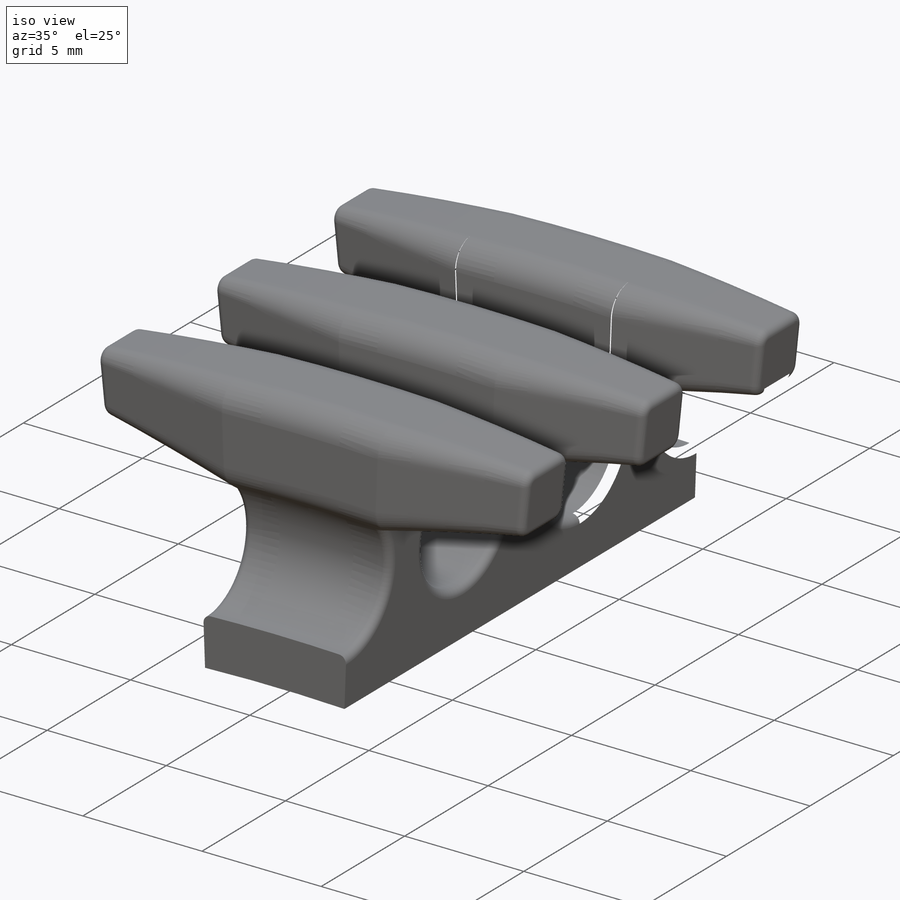
[diagram: iso view]
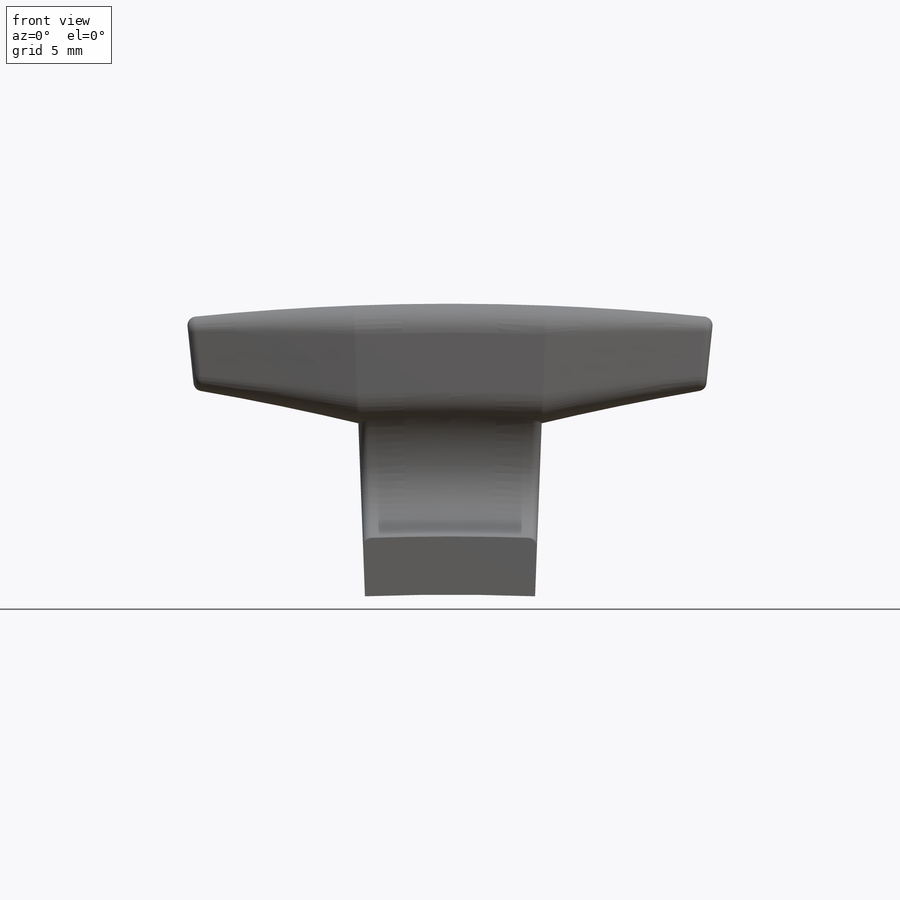
[diagram: front view]
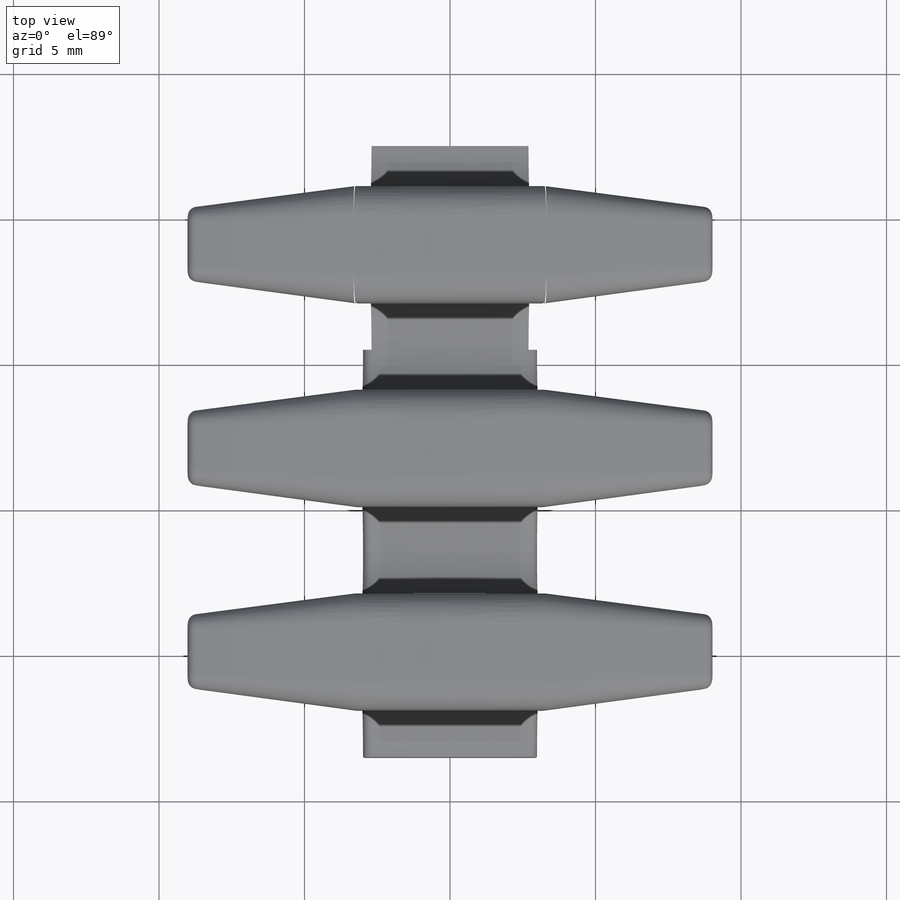
[diagram: top view]
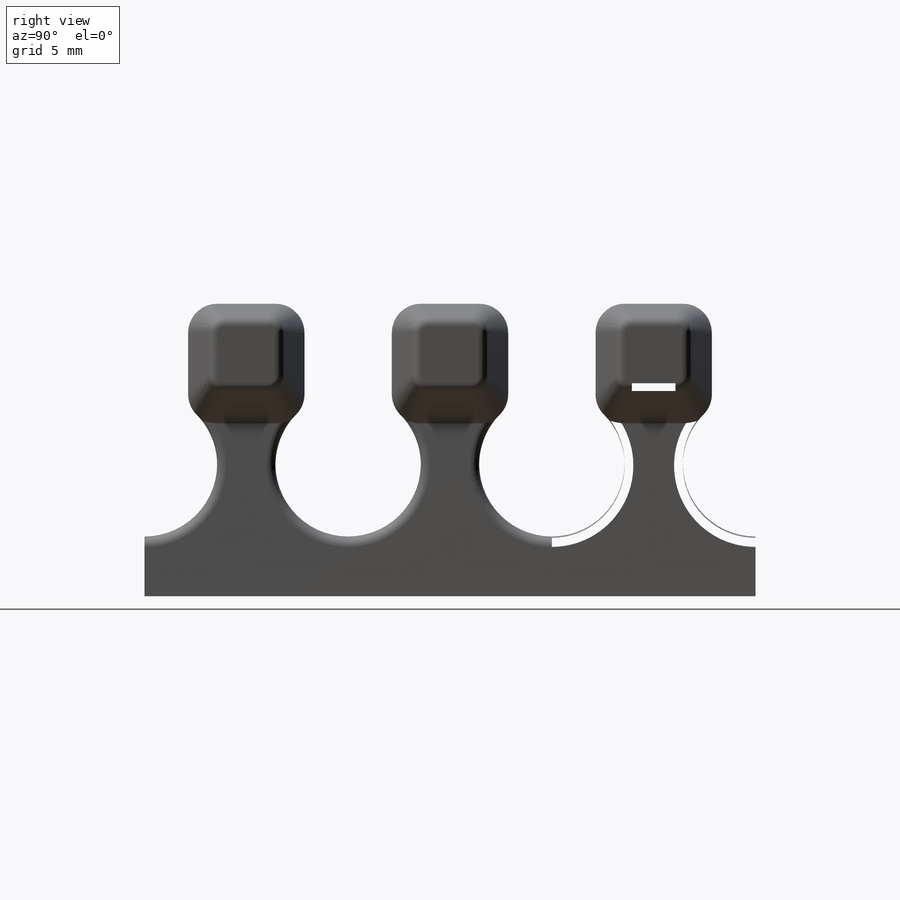
[diagram: right view]
SOLIDWORKS PART (.sldprt)
format: sldprt  version: not decoded by parser v0  size: 2,050,560 bytes
history: native  units: mm
features: sketch x5, fillet x2, pattern_linear x2, material x1, sweep x1, plane x1, mirror x1 (+11 scaffold rows collapsed)
feature tree (24):
  scaffold x11  (default folders/planes/origin — collapsed)
  material  "Material <not specified>"
  sketch  "Sketch1"  dims[D1=5.0mm D6=1.0mm D2=7.0mm D3=2.0mm D4=4.0mm D5=8.0mm]
  sketch  "Sketch2"  dims[D1=78.6mm D2=3.0mm]
  sweep  "Sweep1"
  sketch  "Sketch3"  dims[D1=0.0mm]
  sketch  "Sketch4"  dims[c1.D1=86.6mm c2.D1=6.0deg]
  plane  "tip"
  sketch  "Sketch5"  dims[D2=0.5mm D1=2.5mm]
  fillet  "Fillet1"  Radius=0.3mm
  mirror  "Mirror1"
  fillet  "Fillet2"  Radius=0.3mm
  pattern_linear  "LPattern1"  Count1=5 Count2=1 Spacing1=7mm Spacing2=10mm
  pattern_linear  "LPattern2"  Count1=4 Count2=1 Spacing1=7mm Spacing2=10mm
decode coverage: 9 of 11 modeling features carry decoded parameters
note: suppression state not decoded; provenance and decode notes live in map.json
